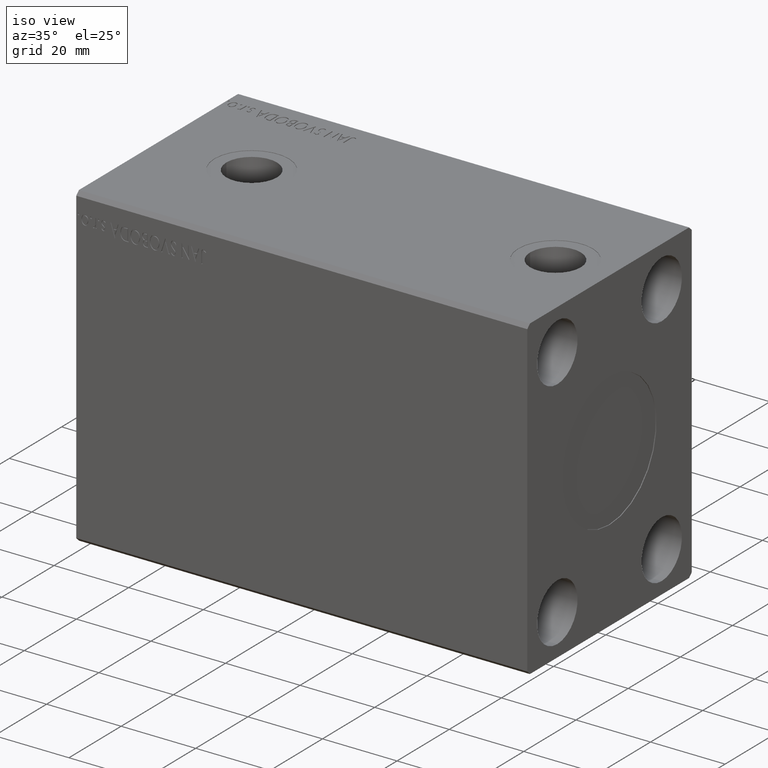
[diagram: clean part render]
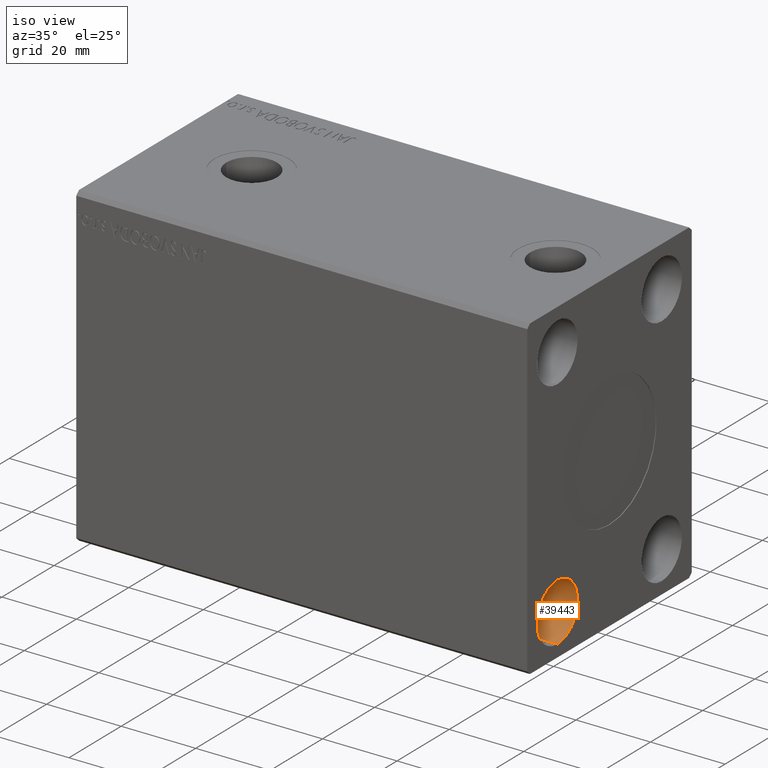
[diagram: same view with one face highlighted and labeled with its STEP entity id]
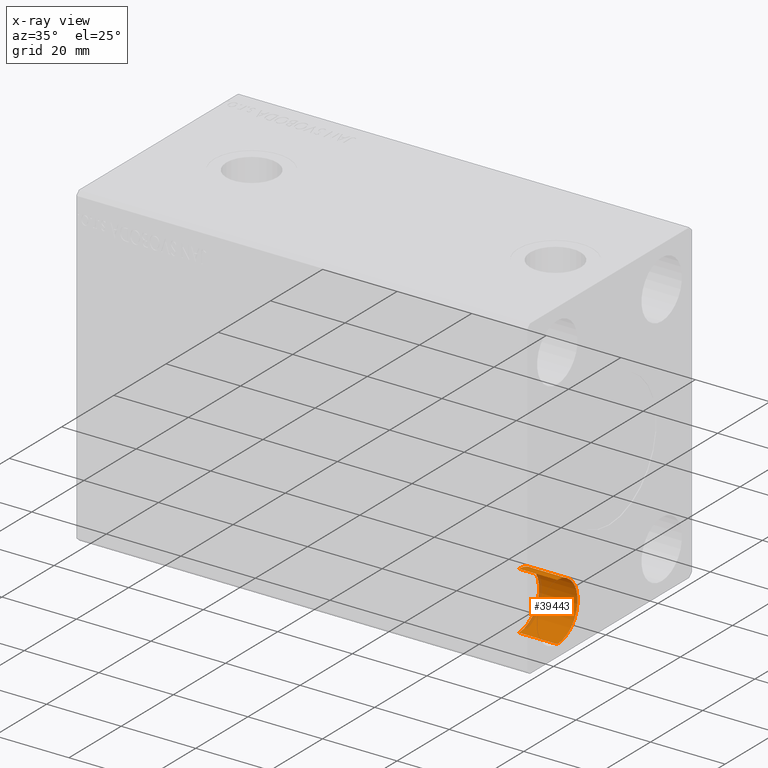
[diagram: x-ray of the same camera — body ghosted, the highlighted face saturated]
A machine part, iso view. The second image highlights one B-rep face of the part: STEP entity #39443.
The next image is the same camera in x-ray: the body ghosted, the highlighted face saturated — about 7% of this face is hidden behind the body in this view.
In plain terms, the highlighted cylindrical surface (edge-blend (fillet) strip) has radius 7.75 mm, axis along (1, -0, -0).
Its self-contained STEP definition (entity closure, byte-faithful):
#1869 = CARTESIAN_POINT ( 'NONE',  ( 121.0000000000000000, -19.99999999999999645, -39.24999999999998579 ) ) ;
#2333 = AXIS2_PLACEMENT_3D ( 'NONE', #7286, #19949, #27608 ) ;
#3148 = EDGE_LOOP ( 'NONE', ( #37266, #8638, #26694, #5582 ) ) ;
#5582 = ORIENTED_EDGE ( 'NONE', *, *, #24354, .T. ) ;
#5986 = VERTEX_POINT ( 'NONE', #35835 ) ;
#6255 = VECTOR ( 'NONE', #41713, 1000.000000000000000 ) ;
#6725 = AXIS2_PLACEMENT_3D ( 'NONE', #19855, #29330, #39209 ) ;
#7286 = CARTESIAN_POINT ( 'NONE',  ( 110.6699999999999875, -19.99999999999999645, -31.49999999999998579 ) ) ;
#7315 = DIRECTION ( 'NONE',  ( 0.000000000000000000, 0.000000000000000000, -1.000000000000000000 ) ) ;
#8197 = EDGE_CURVE ( 'NONE', #5986, #16570, #22571, .T. ) ;
#8458 = VERTEX_POINT ( 'NONE', #19453 ) ;
#8638 = ORIENTED_EDGE ( 'NONE', *, *, #21929, .F. ) ;
#12575 = CYLINDRICAL_SURFACE ( 'NONE', #6725, 7.750000000000000000 ) ;
#12783 = DIRECTION ( 'NONE',  ( 1.000000000000000000, -0.000000000000000000, -0.000000000000000000 ) ) ;
#15365 = CARTESIAN_POINT ( 'NONE',  ( 110.6699999999999875, -19.99999999999999645, -39.24999999999998579 ) ) ;
#16570 = VERTEX_POINT ( 'NONE', #22733 ) ;
#17773 = EDGE_CURVE ( 'NONE', #8458, #42184, #22015, .T. ) ;
#19014 = FACE_OUTER_BOUND ( 'NONE', #3148, .T. ) ;
#19453 = CARTESIAN_POINT ( 'NONE',  ( 110.6699999999999875, -19.99999999999999645, -39.24999999999998579 ) ) ;
#19855 = CARTESIAN_POINT ( 'NONE',  ( 110.6699999999999875, -19.99999999999999645, -31.49999999999998579 ) ) ;
#19949 = DIRECTION ( 'NONE',  ( 1.000000000000000000, -0.000000000000000000, -0.000000000000000000 ) ) ;
#21929 = EDGE_CURVE ( 'NONE', #8458, #5986, #35246, .T. ) ;
#22015 = LINE ( 'NONE', #15365, #42128 ) ;
#22571 = LINE ( 'NONE', #32039, #6255 ) ;
#22733 = CARTESIAN_POINT ( 'NONE',  ( 121.0000000000000000, -19.99999999999999645, -23.74999999999998579 ) ) ;
#23628 = CARTESIAN_POINT ( 'NONE',  ( 121.0000000000000000, -19.99999999999999645, -31.49999999999998579 ) ) ;
#24354 = EDGE_CURVE ( 'NONE', #42184, #16570, #25705, .T. ) ;
#25705 = CIRCLE ( 'NONE', #27074, 7.750000000000000000 ) ;
#26694 = ORIENTED_EDGE ( 'NONE', *, *, #17773, .T. ) ;
#27074 = AXIS2_PLACEMENT_3D ( 'NONE', #23628, #36739, #7315 ) ;
#27608 = DIRECTION ( 'NONE',  ( 0.000000000000000000, 0.000000000000000000, -1.000000000000000000 ) ) ;
#29330 = DIRECTION ( 'NONE',  ( 1.000000000000000000, -0.000000000000000000, -0.000000000000000000 ) ) ;
#32039 = CARTESIAN_POINT ( 'NONE',  ( 110.6699999999999875, -19.99999999999999645, -23.74999999999998579 ) ) ;
#35246 = CIRCLE ( 'NONE', #2333, 7.750000000000000000 ) ;
#35835 = CARTESIAN_POINT ( 'NONE',  ( 110.6699999999999875, -19.99999999999999645, -23.74999999999998579 ) ) ;
#36739 = DIRECTION ( 'NONE',  ( 1.000000000000000000, -0.000000000000000000, -0.000000000000000000 ) ) ;
#37266 = ORIENTED_EDGE ( 'NONE', *, *, #8197, .F. ) ;
#39209 = DIRECTION ( 'NONE',  ( 0.000000000000000000, 0.000000000000000000, -1.000000000000000000 ) ) ;
#39443 = ADVANCED_FACE ( 'NONE', ( #19014 ), #12575, .F. ) ;
#41713 = DIRECTION ( 'NONE',  ( 1.000000000000000000, -0.000000000000000000, -0.000000000000000000 ) ) ;
#42128 = VECTOR ( 'NONE', #12783, 1000.000000000000000 ) ;
#42184 = VERTEX_POINT ( 'NONE', #1869 ) ;